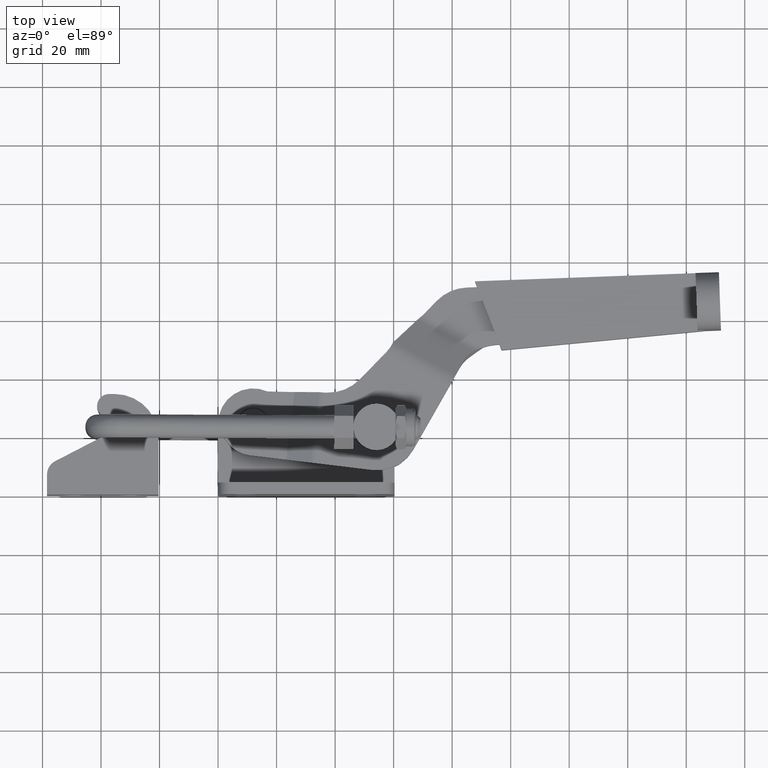
[diagram: clean part render]
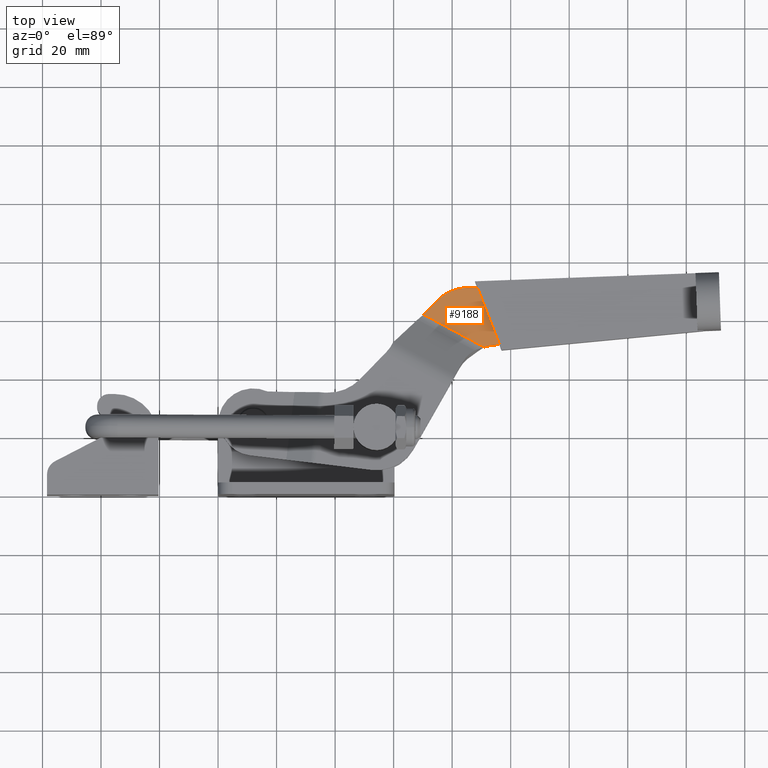
[diagram: same view with one face highlighted and labeled with its STEP entity id]
A machine part, top view. The second image highlights one B-rep face of the part: STEP entity #9188.
In plain terms, the highlighted planar face has unit normal (-0, 0, 1).
Its self-contained STEP definition (entity closure, byte-faithful):
#38 = CIRCLE ( 'NONE', #4934, 15.00000000000017400 ) ;
#97 = CARTESIAN_POINT ( 'NONE',  ( 96.15939174480654100, 51.50317007253084300, 3.999999999999989800 ) ) ;
#981 = CARTESIAN_POINT ( 'NONE',  ( 74.77624726829810700, 66.45517175661348100, 3.999999999999993300 ) ) ;
#1643 = CARTESIAN_POINT ( 'NONE',  ( 101.4385667208275100, 37.86977596612322800, 4.000000000000000900 ) ) ;
#1830 = CARTESIAN_POINT ( 'NONE',  ( 95.02046568633396400, 35.38453435200836600, 4.000000000000000000 ) ) ;
#2291 = ORIENTED_EDGE ( 'NONE', *, *, #4812, .T. ) ;
#2434 = AXIS2_PLACEMENT_3D ( 'NONE', #4911, #10940, #5786 ) ;
#2500 = ORIENTED_EDGE ( 'NONE', *, *, #6141, .T. ) ;
#2694 = VERTEX_POINT ( 'NONE', #981 ) ;
#2713 = AXIS2_PLACEMENT_3D ( 'NONE', #1830, #10424, #5267 ) ;
#2815 = LINE ( 'NONE', #6204, #4825 ) ;
#2836 = EDGE_CURVE ( 'NONE', #8949, #10839, #4376, .T. ) ;
#2912 = CARTESIAN_POINT ( 'NONE',  ( 85.51173763566083600, 55.97904429594044700, 3.999999999999993300 ) ) ;
#3563 = ORIENTED_EDGE ( 'NONE', *, *, #8020, .F. ) ;
#3755 = CARTESIAN_POINT ( 'NONE',  ( 100.4451258240432900, 45.46172214692685300, 3.999999999999993300 ) ) ;
#3765 = CARTESIAN_POINT ( 'NONE',  ( 94.33846938173674300, 51.32970186534056000, 3.999999999999989800 ) ) ;
#3772 = DIRECTION ( 'NONE',  ( 0.9926746598604694300, -0.1208181264169466600, 1.734723475976786900E-016 ) ) ;
#4011 = EDGE_CURVE ( 'NONE', #6249, #9858, #9185, .T. ) ;
#4086 = VECTOR ( 'NONE', #8918, 999.9999999999998900 ) ;
#4376 = LINE ( 'NONE', #3755, #4086 ) ;
#4378 = ORIENTED_EDGE ( 'NONE', *, *, #6129, .T. ) ;
#4387 = PLANE ( 'NONE',  #2713 ) ;
#4599 = CIRCLE ( 'NONE', #2434, 14.99999999999976900 ) ;
#4610 = VERTEX_POINT ( 'NONE', #4733 ) ;
#4733 = CARTESIAN_POINT ( 'NONE',  ( 88.57033858252658800, 71.10179166128243400, 3.999999999999994200 ) ) ;
#4743 = CARTESIAN_POINT ( 'NONE',  ( 94.33846938173674300, 51.32970186534056000, 3.999999999999989800 ) ) ;
#4812 = EDGE_CURVE ( 'NONE', #8949, #6249, #4599, .T. ) ;
#4825 = VECTOR ( 'NONE', #8811, 1000.000000000000000 ) ;
#4911 = CARTESIAN_POINT ( 'NONE',  ( 95.76098796952268800, 36.39730618121149800, 3.999999999999989800 ) ) ;
#4934 = AXIS2_PLACEMENT_3D ( 'NONE', #2912, #8934, #3772 ) ;
#5107 = ORIENTED_EDGE ( 'NONE', *, *, #10107, .T. ) ;
#5158 = VECTOR ( 'NONE', #8166, 999.9999999999998900 ) ;
#5267 = DIRECTION ( 'NONE',  ( 0.9926746598604694300, -0.1208181264169464600, 1.663819318790637700E-016 ) ) ;
#5397 = LINE ( 'NONE', #1643, #7406 ) ;
#5570 = VERTEX_POINT ( 'NONE', #7874 ) ;
#5786 = DIRECTION ( 'NONE',  ( 0.9926746598604694300, -0.1208181264169466700, 1.734723475976833700E-016 ) ) ;
#6129 = EDGE_CURVE ( 'NONE', #2694, #10839, #2815, .T. ) ;
#6141 = EDGE_CURVE ( 'NONE', #4610, #5570, #6846, .T. ) ;
#6170 = DIRECTION ( 'NONE',  ( -0.9993231855781514700, -0.03678546949456709000, -1.663830263618186200E-016 ) ) ;
#6204 = CARTESIAN_POINT ( 'NONE',  ( 48.40289883496361500, 39.42888469357186700, 3.999999999999989800 ) ) ;
#6249 = VERTEX_POINT ( 'NONE', #3765 ) ;
#6558 = CARTESIAN_POINT ( 'NONE',  ( 70.18552552276733500, 61.75079513811612500, 3.999999982573428700 ) ) ;
#6568 = VECTOR ( 'NONE', #6170, 999.9999999999998900 ) ;
#6846 = LINE ( 'NONE', #10549, #6568 ) ;
#7362 = CARTESIAN_POINT ( 'NONE',  ( 90.91379444161873400, 50.59254182219466900, 3.999999982573429600 ) ) ;
#7406 = VECTOR ( 'NONE', #8489, 1000.000000000000000 ) ;
#7751 = ORIENTED_EDGE ( 'NONE', *, *, #2836, .F. ) ;
#7874 = CARTESIAN_POINT ( 'NONE',  ( 84.95995559324231300, 70.96889207961287100, 3.999999999999993300 ) ) ;
#8020 = EDGE_CURVE ( 'NONE', #4610, #9858, #5397, .T. ) ;
#8166 = DIRECTION ( 'NONE',  ( 0.9954930456086204000, 0.09483457251906295100, 1.386288021125443300E-016 ) ) ;
#8489 = DIRECTION ( 'NONE',  ( 0.3610971368517270600, -0.9325282074862321100, 2.161032908952066300E-016 ) ) ;
#8811 = DIRECTION ( 'NONE',  ( -0.6984084973781948800, -0.7156993578241719300, -1.386819346284528100E-016 ) ) ;
#8918 = DIRECTION ( 'NONE',  ( -0.8805264585931378300, 0.4739969996924318600, -1.386385901304210200E-016 ) ) ;
#8934 = DIRECTION ( 'NONE',  ( -1.462997765276333600E-016, 1.750883878452989100E-016, 1.000000000000000000 ) ) ;
#8949 = VERTEX_POINT ( 'NONE', #7362 ) ;
#9185 = LINE ( 'NONE', #4743, #5158 ) ;
#9188 = ADVANCED_FACE ( 'NONE', ( #9398 ), #4387, .T. ) ;
#9398 = FACE_OUTER_BOUND ( 'NONE', #10215, .T. ) ;
#9813 = ORIENTED_EDGE ( 'NONE', *, *, #4011, .T. ) ;
#9858 = VERTEX_POINT ( 'NONE', #97 ) ;
#10107 = EDGE_CURVE ( 'NONE', #5570, #2694, #38, .T. ) ;
#10215 = EDGE_LOOP ( 'NONE', ( #3563, #2500, #5107, #4378, #7751, #2291, #9813 ) ) ;
#10424 = DIRECTION ( 'NONE',  ( -1.462997765276333300E-016, 1.750883878452989300E-016, 1.000000000000000000 ) ) ;
#10549 = CARTESIAN_POINT ( 'NONE',  ( 84.95995559324231300, 70.96889207961287100, 3.999999999999993300 ) ) ;
#10839 = VERTEX_POINT ( 'NONE', #6558 ) ;
#10940 = DIRECTION ( 'NONE',  ( 1.462997765276333600E-016, -1.750883878452989100E-016, -1.000000000000000000 ) ) ;